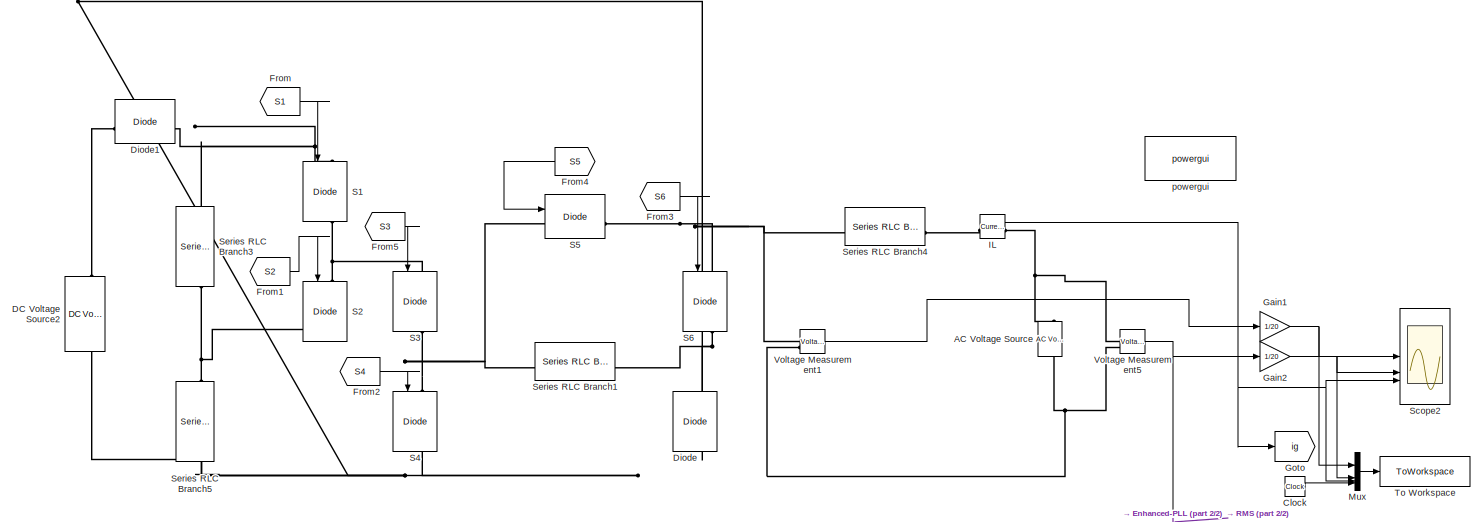
[diagram: root canvas - part 1/2, full width, top band]
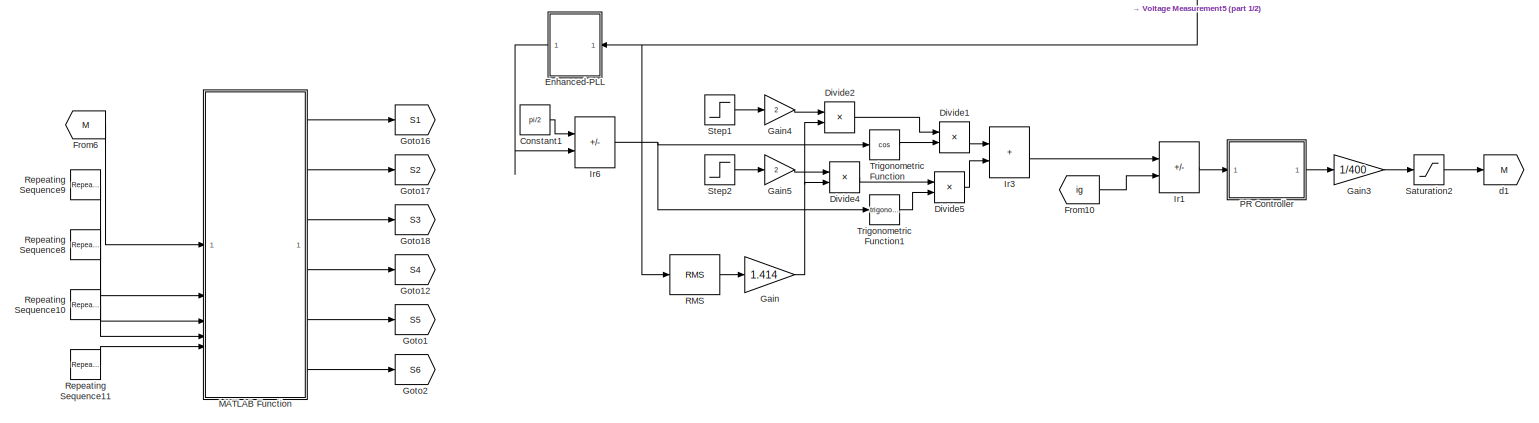
[diagram: root canvas - part 2/2, full width, bottom band]
MODEL slx_94257b153b8b
KIND model
CONFIG AbsTol = auto
CONFIG EnableMultiTasking = off
CONFIG FixedStep = auto
CONFIG MaxStep = auto
CONFIG MinStep = auto
CONFIG RelTol = 1e-3
CONFIG SampleTimeConstraint = Unconstrained
CONFIG SolverName = VariableStepAuto
CONFIG StartTime = 0.0
CONFIG StopTime = 0.6
BLOCK [Reference] AC Voltage Source  REF=spsACVoltageSourceLib/AC Voltage Source
  LibrarySourceBlock = sps_lib/Sources/AC Voltage Source
  NameLocation = right
  SourceBlock = spsACVoltageSourceLib/AC Voltage Source
  SourceType = AC Voltage Source
BLOCK [Clock] Clock
BLOCK [Constant] Constant1
  Value = pi/2
BLOCK [Reference] DC Voltage Source2  REF=spsDCVoltageSourceLib/DC Voltage Source
  LibrarySourceBlock = sps_lib/Sources/DC Voltage Source
  NameLocation = right
  SourceBlock = spsDCVoltageSourceLib/DC Voltage Source
  SourceType = DC Voltage Source
BLOCK [Reference] Diode  REF=spsDiodeLib/Diode
  LibrarySourceBlock = sps_lib/Power Electronics/Diode
  NameLocation = left
  SourceBlock = spsDiodeLib/Diode
  SourceType = Diode
BLOCK [Reference] Diode1  REF=spsDiodeLib/Diode
  LibrarySourceBlock = sps_lib/Power Electronics/Diode
  SourceBlock = spsDiodeLib/Diode
  SourceType = Diode
BLOCK [Product] Divide1
  Inputs = **
BLOCK [Product] Divide2
  Inputs = */
BLOCK [Product] Divide4
  Inputs = */
BLOCK [Product] Divide5
  Inputs = **
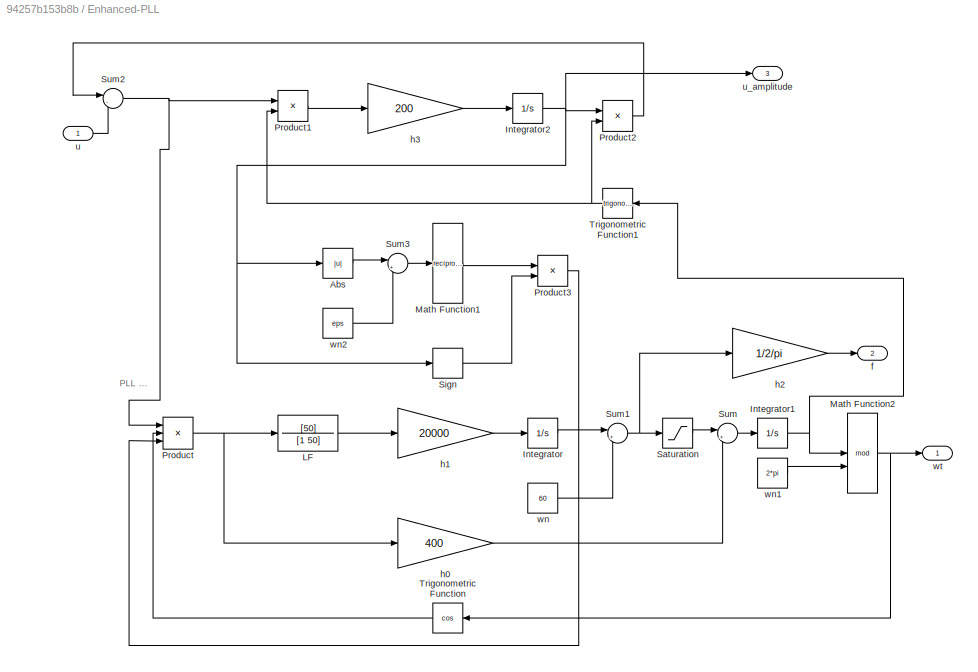
BLOCK [SubSystem] Enhanced-PLL
  NameLocation = top
BLOCK [Abs] Enhanced-PLL/Abs
  SaturateOnIntegerOverflow = off
BLOCK [Integrator] Enhanced-PLL/Integrator
BLOCK [Integrator] Enhanced-PLL/Integrator1
BLOCK [Integrator] Enhanced-PLL/Integrator2
BLOCK [TransferFcn] Enhanced-PLL/LF
  Denominator = [1 50]
  Numerator = [50]
BLOCK [Math] Enhanced-PLL/Math Function1
  Operator = reciprocal
  SignedPower = on
BLOCK [Math] Enhanced-PLL/Math Function2
  Operator = mod
  SignedPower = on
BLOCK [Product] Enhanced-PLL/Product
  Inputs = 3
BLOCK [Product] Enhanced-PLL/Product1
BLOCK [Product] Enhanced-PLL/Product2
BLOCK [Product] Enhanced-PLL/Product3
BLOCK [Saturate] Enhanced-PLL/Saturation
  LowerLimit = 2*pi*30
  UpperLimit = 2*pi*300
BLOCK [Signum] Enhanced-PLL/Sign
BLOCK [Sum] Enhanced-PLL/Sum
  Inputs = |++
BLOCK [Sum] Enhanced-PLL/Sum1
  Inputs = |++
BLOCK [Sum] Enhanced-PLL/Sum2
  Inputs = |-+
BLOCK [Sum] Enhanced-PLL/Sum3
  Inputs = |++
BLOCK [Trigonometry] Enhanced-PLL/Trigonometric Function
  NameLocation = top
  Operator = cos
BLOCK [Trigonometry] Enhanced-PLL/Trigonometric Function1
  NameLocation = top
BLOCK [Outport] Enhanced-PLL/f
  Port = 2
BLOCK [Gain] Enhanced-PLL/h0
  Gain = 400
BLOCK [Gain] Enhanced-PLL/h1
  Gain = 20000
BLOCK [Gain] Enhanced-PLL/h2
  Gain = 1/2/pi
BLOCK [Gain] Enhanced-PLL/h3
  Gain = 200
BLOCK [Inport] Enhanced-PLL/u
BLOCK [Outport] Enhanced-PLL/u_amplitude
  Port = 3
BLOCK [Constant] Enhanced-PLL/wn
  Value = 60
BLOCK [Constant] Enhanced-PLL/wn1
  Value = 2*pi
BLOCK [Constant] Enhanced-PLL/wn2
  Value = eps
BLOCK [Outport] Enhanced-PLL/wt
BLOCK [From] From
  GotoTag = S1
BLOCK [From] From1
  GotoTag = S2
BLOCK [From] From10
  GotoTag = ig
BLOCK [From] From2
  GotoTag = S4
BLOCK [From] From3
  GotoTag = S6
BLOCK [From] From4
  GotoTag = S5
  NameLocation = top
BLOCK [From] From5
  GotoTag = S3
BLOCK [From] From6
  GotoTag = M
  TagVisibility = global
BLOCK [Gain] Gain
  Gain = 1.414
BLOCK [Gain] Gain1
  Gain = 1/20
BLOCK [Gain] Gain2
  Gain = 1/20
BLOCK [Gain] Gain3
  Gain = 1/400
BLOCK [Gain] Gain4
  Gain = 2
BLOCK [Gain] Gain5
  Gain = 2
BLOCK [Goto] Goto
  GotoTag = ig
BLOCK [Goto] Goto1
  GotoTag = S5
BLOCK [Goto] Goto12
  GotoTag = S4
BLOCK [Goto] Goto16
  GotoTag = S1
BLOCK [Goto] Goto17
  GotoTag = S2
BLOCK [Goto] Goto18
  GotoTag = S3
BLOCK [Goto] Goto2
  GotoTag = S6
BLOCK [Reference] IL  REF=spsCurrentMeasurementLib/Current Measurement
  LibrarySourceBlock = sps_lib/Sensors and Measurements/Current Measurement
  SourceBlock = spsCurrentMeasurementLib/Current Measurement
  SourceType = Current Measurement
  UserDataPersistent = on
BLOCK [Sum] Ir1
  IconShape = rectangular
  Inputs = +-
BLOCK [Sum] Ir3
  IconShape = rectangular
BLOCK [Sum] Ir6
  IconShape = rectangular
  Inputs = -+
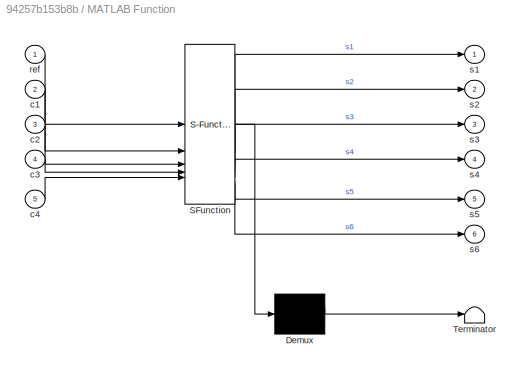
BLOCK [SubSystem] MATLAB Function
  ErrorFcn = Stateflow.Translate.translate
  PermitHierarchicalResolution = ExplicitOnly
  SFBlockType = MATLAB Function
  TreatAsAtomicUnit = on
BLOCK [Demux] MATLAB Function/ Demux 
  Outputs = 1
BLOCK [S-Function] MATLAB Function/ SFunction 
  EnableBusSupport = on
  FunctionName = sf_sfun
  PortCounts = [5 7]
  SFcnIsStateOwnerBlock = off
  SFunctionDeploymentMode = off
  Tag = Stateflow S-Function 2
BLOCK [Terminator] MATLAB Function/ Terminator 
BLOCK [Inport] MATLAB Function/c1
  Port = 2
BLOCK [Inport] MATLAB Function/c2
  Port = 3
BLOCK [Inport] MATLAB Function/c3
  Port = 4
BLOCK [Inport] MATLAB Function/c4
  Port = 5
BLOCK [Inport] MATLAB Function/ref
BLOCK [Outport] MATLAB Function/s1
BLOCK [Outport] MATLAB Function/s2
  Port = 2
BLOCK [Outport] MATLAB Function/s3
  Port = 3
BLOCK [Outport] MATLAB Function/s4
  Port = 4
BLOCK [Outport] MATLAB Function/s5
  Port = 5
BLOCK [Outport] MATLAB Function/s6
  Port = 6
BLOCK [Mux] Mux
  DisplayOption = bar
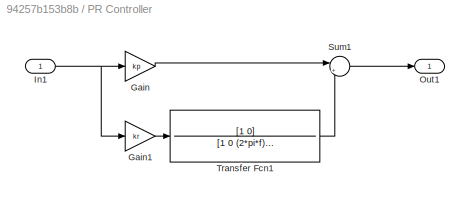
BLOCK [SubSystem] PR Controller
BLOCK [Gain] PR Controller/Gain
  Gain = kp
BLOCK [Gain] PR Controller/Gain1
  Gain = kr
BLOCK [Inport] PR Controller/In1
BLOCK [Outport] PR Controller/Out1
BLOCK [Sum] PR Controller/Sum1
  Inputs = |++
BLOCK [TransferFcn] PR Controller/Transfer Fcn1
  Denominator = [1 0 (2*pi*f)^2]
  Numerator = [1 0]
BLOCK [Reference] RMS  REF=spsRMSLib/RMS
  LibrarySourceBlock = sps_lib/Sensors and Measurements/RMS
  SourceBlock = spsRMSLib/RMS
  SourceType = RMS
BLOCK [Reference] Repeating Sequence10  REF=simulink/Sources/Repeating
Sequence
  SourceBlock = simulink/Sources/Repeating\nSequence
  SourceType = Repeating table
BLOCK [Reference] Repeating Sequence11  REF=simulink/Sources/Repeating
Sequence
  SourceBlock = simulink/Sources/Repeating\nSequence
  SourceType = Repeating table
BLOCK [Reference] Repeating Sequence8  REF=simulink/Sources/Repeating
Sequence
  SourceBlock = simulink/Sources/Repeating\nSequence
  SourceType = Repeating table
BLOCK [Reference] Repeating Sequence9  REF=simulink/Sources/Repeating
Sequence
  SourceBlock = simulink/Sources/Repeating\nSequence
  SourceType = Repeating table
BLOCK [Reference] S1  REF=spsIGBTDiodeLib/IGBT//Diode
  LibrarySourceBlock = sps_lib/Power Electronics/IGBT//Diode
  NameLocation = left
  SourceBlock = spsIGBTDiodeLib/IGBT//Diode
  SourceType = IGBT/Diode
BLOCK [Reference] S2  REF=spsIGBTDiodeLib/IGBT//Diode
  LibrarySourceBlock = sps_lib/Power Electronics/IGBT//Diode
  NameLocation = left
  SourceBlock = spsIGBTDiodeLib/IGBT//Diode
  SourceType = IGBT/Diode
BLOCK [Reference] S3  REF=spsIGBTDiodeLib/IGBT//Diode
  LibrarySourceBlock = sps_lib/Power Electronics/IGBT//Diode
  NameLocation = left
  SourceBlock = spsIGBTDiodeLib/IGBT//Diode
  SourceType = IGBT/Diode
BLOCK [Reference] S4  REF=spsIGBTDiodeLib/IGBT//Diode
  LibrarySourceBlock = sps_lib/Power Electronics/IGBT//Diode
  NameLocation = left
  SourceBlock = spsIGBTDiodeLib/IGBT//Diode
  SourceType = IGBT/Diode
BLOCK [Reference] S5  REF=spsIGBTDiodeLib/IGBT//Diode
  LibrarySourceBlock = sps_lib/Power Electronics/IGBT//Diode
  SourceBlock = spsIGBTDiodeLib/IGBT//Diode
  SourceType = IGBT/Diode
BLOCK [Reference] S6  REF=spsIGBTDiodeLib/IGBT//Diode
  LibrarySourceBlock = sps_lib/Power Electronics/IGBT//Diode
  NameLocation = left
  SourceBlock = spsIGBTDiodeLib/IGBT//Diode
  SourceType = IGBT/Diode
BLOCK [Saturate] Saturation2
  LinearizeAsGain = off
  LowerLimit = -2
  UpperLimit = 2
BLOCK [Scope] Scope2
  Floating = off
  NumInputPorts = 3
  ScopeSpecificationString = Simulink.scopes.TimeScopeBlockCfg('CurrentConfiguration', extmgr.ConfigurationSet(extmgr.Configuration('Core','General UI',true),extmgr.Configuration('Core','Source UI',true),extmgr.Configuration('Sources','WiredSimulink',true,'DataLogging',true,'DataLoggingVariableName','ScopeData2','DataLoggingSaveFormat','StructureWithTime','DataLoggingDecimation','1','DataLoggingDecimateData',true),extmgr.Conf...<+3342ch>
BLOCK [Reference] Series RLC Branch1  REF=spsSeriesRLCBranchLib/Series RLC Branch
  LibrarySourceBlock = sps_lib/Passives/Series RLC Branch
  SourceBlock = spsSeriesRLCBranchLib/Series RLC Branch
  SourceType = Series RLC Branch
BLOCK [Reference] Series RLC Branch3  REF=spsSeriesRLCBranchLib/Series RLC Branch
  LibrarySourceBlock = sps_lib/Passives/Series RLC Branch
  NameLocation = left
  SourceBlock = spsSeriesRLCBranchLib/Series RLC Branch
  SourceType = Series RLC Branch
BLOCK [Reference] Series RLC Branch4  REF=spsSeriesRLCBranchLib/Series RLC Branch
  LibrarySourceBlock = sps_lib/Passives/Series RLC Branch
  SourceBlock = spsSeriesRLCBranchLib/Series RLC Branch
  SourceType = Series RLC Branch
BLOCK [Reference] Series RLC Branch5  REF=spsSeriesRLCBranchLib/Series RLC Branch
  LibrarySourceBlock = sps_lib/Passives/Series RLC Branch
  NameLocation = left
  SourceBlock = spsSeriesRLCBranchLib/Series RLC Branch
  SourceType = Series RLC Branch
BLOCK [Step] Step1
  After = 0
  Before = 1000
  SampleTime = 0
  Time = 0.3
BLOCK [Step] Step2
  After = 1200
  SampleTime = 0
  Time = 0.3
BLOCK [ToWorkspace] To Workspace
  FixptAsFi = on
  MaxDataPoints = inf
  SampleTime = -1
  Save2DSignal = 2-D array (concatenate along first dimension)
  VariableName = simout
BLOCK [Trigonometry] Trigonometric Function
  Operator = cos
BLOCK [Trigonometry] Trigonometric Function1
BLOCK [Reference] Voltage Measurement1  REF=spsVoltageMeasurementLib/Voltage Measurement
  LibrarySourceBlock = sps_lib/Sensors and Measurements/Voltage Measurement
  SourceBlock = spsVoltageMeasurementLib/Voltage Measurement
  SourceType = Voltage Measurement
  UserDataPersistent = on
BLOCK [Reference] Voltage Measurement5  REF=spsVoltageMeasurementLib/Voltage Measurement
  LibrarySourceBlock = sps_lib/Sensors and Measurements/Voltage Measurement
  SourceBlock = spsVoltageMeasurementLib/Voltage Measurement
  SourceType = Voltage Measurement
  UserDataPersistent = on
BLOCK [Goto] d1
  GotoTag = M
  TagVisibility = global
BLOCK [Reference] powergui  REF=sps_lib/powergui
  LibrarySourceBlock = sps_lib/powergui
  Priority = 1
  SourceBlock = sps_lib/powergui
  SourceType = PSB option menu block
ANNOTATION Enhanced-PLL: PLL
LINE Clock:1 -> Mux:4
LINE Constant1:1 -> Ir6:1
LINE Divide1:1 -> Ir3:1
LINE Divide2:1 -> Divide1:1
LINE Divide4:1 -> Divide5:1
LINE Divide5:1 -> Ir3:2
LINE Enhanced-PLL/Abs:1 -> Enhanced-PLL/Sum3:1
NET Enhanced-PLL/Integrator1:1 -> Enhanced-PLL/Math Function2:1, Enhanced-PLL/Trigonometric Function1:1
NET Enhanced-PLL/Integrator2:1 -> Enhanced-PLL/Abs:1, Enhanced-PLL/Product2:1, Enhanced-PLL/Sign:1, Enhanced-PLL/u_amplitude:1
LINE Enhanced-PLL/Integrator:1 -> Enhanced-PLL/Sum1:1
LINE Enhanced-PLL/LF:1 -> Enhanced-PLL/h1:1
LINE Enhanced-PLL/Math Function1:1 -> Enhanced-PLL/Product3:1
NET Enhanced-PLL/Math Function2:1 -> Enhanced-PLL/Trigonometric Function:1, Enhanced-PLL/wt:1
LINE Enhanced-PLL/Product1:1 -> Enhanced-PLL/h3:1
LINE Enhanced-PLL/Product2:1 -> Enhanced-PLL/Sum2:1
LINE Enhanced-PLL/Product3:1 -> Enhanced-PLL/Product:3
NET Enhanced-PLL/Product:1 -> Enhanced-PLL/LF:1, Enhanced-PLL/h0:1
LINE Enhanced-PLL/Saturation:1 -> Enhanced-PLL/Sum:1
LINE Enhanced-PLL/Sign:1 -> Enhanced-PLL/Product3:2
NET Enhanced-PLL/Sum1:1 -> Enhanced-PLL/Saturation:1, Enhanced-PLL/h2:1
NET Enhanced-PLL/Sum2:1 -> Enhanced-PLL/Product1:1, Enhanced-PLL/Product:1
LINE Enhanced-PLL/Sum3:1 -> Enhanced-PLL/Math Function1:1
LINE Enhanced-PLL/Sum:1 -> Enhanced-PLL/Integrator1:1
NET Enhanced-PLL/Trigonometric Function1:1 -> Enhanced-PLL/Product1:2, Enhanced-PLL/Product2:2
LINE Enhanced-PLL/Trigonometric Function:1 -> Enhanced-PLL/Product:2
LINE Enhanced-PLL/h0:1 -> Enhanced-PLL/Sum:2
LINE Enhanced-PLL/h1:1 -> Enhanced-PLL/Integrator:1
LINE Enhanced-PLL/h2:1 -> Enhanced-PLL/f:1
LINE Enhanced-PLL/h3:1 -> Enhanced-PLL/Integrator2:1
LINE Enhanced-PLL/u:1 -> Enhanced-PLL/Sum2:2
LINE Enhanced-PLL/wn1:1 -> Enhanced-PLL/Math Function2:2
LINE Enhanced-PLL/wn2:1 -> Enhanced-PLL/Sum3:2
LINE Enhanced-PLL/wn:1 -> Enhanced-PLL/Sum1:2
LINE Enhanced-PLL:1 -> Ir6:2
LINE From10:1 -> Ir1:2
LINE From1:1 -> S2:1
LINE From2:1 -> S4:1
LINE From3:1 -> S6:1
LINE From4:1 -> S5:1
LINE From5:1 -> S3:1
LINE From6:1 -> MATLAB Function:1
LINE From:1 -> S1:1
NET Gain1:1 -> Mux:1, Scope2:1
NET Gain2:1 -> Mux:2, Scope2:2
LINE Gain3:1 -> Saturation2:1
LINE Gain4:1 -> Divide2:1
LINE Gain5:1 -> Divide4:1
NET Gain:1 -> Divide2:2, Divide4:2
NET IL:1 -> Goto:1, Mux:3, Scope2:3
LINE Ir1:1 -> PR Controller:1
LINE Ir3:1 -> Ir1:1
NET Ir6:1 -> Trigonometric Function1:1, Trigonometric Function:1
LINE MATLAB Function:1 -> Goto16:1
LINE MATLAB Function:2 -> Goto17:1
LINE MATLAB Function:3 -> Goto18:1
LINE MATLAB Function:4 -> Goto12:1
LINE MATLAB Function:5 -> Goto1:1
LINE MATLAB Function:6 -> Goto2:1
LINE Mux:1 -> To Workspace:1
LINE PR Controller/Gain1:1 -> PR Controller/Transfer Fcn1:1
LINE PR Controller/Gain:1 -> PR Controller/Sum1:1
NET PR Controller/In1:1 -> PR Controller/Gain1:1, PR Controller/Gain:1
LINE PR Controller/Sum1:1 -> PR Controller/Out1:1
LINE PR Controller/Transfer Fcn1:1 -> PR Controller/Sum1:2
LINE PR Controller:1 -> Gain3:1
LINE RMS:1 -> Gain:1
LINE Repeating Sequence10:1 -> MATLAB Function:4
LINE Repeating Sequence11:1 -> MATLAB Function:5
LINE Repeating Sequence8:1 -> MATLAB Function:3
LINE Repeating Sequence9:1 -> MATLAB Function:2
LINE Saturation2:1 -> d1:1
LINE Step1:1 -> Gain4:1
LINE Step2:1 -> Gain5:1
LINE Trigonometric Function1:1 -> Divide5:2
LINE Trigonometric Function:1 -> Divide1:2
LINE Voltage Measurement1:1 -> Gain1:1
NET Voltage Measurement5:1 -> Enhanced-PLL:1, Gain2:1, RMS:1
PNET net1: AC Voltage Source:LConn1 -- DC Voltage Source2:LConn1 -- Diode:RConn1 -- S4:RConn1 -- Series RLC Branch5:RConn1 -- Voltage Measurement1:LConn2 -- Voltage Measurement5:LConn2
PNET net2: AC Voltage Source:RConn1 -- IL:RConn1 -- Voltage Measurement5:LConn1
PLINE DC Voltage Source2:RConn1 -- Diode1:LConn1
PNET net3: Diode1:RConn1 -- S1:LConn1 -- Series RLC Branch3:LConn1
PNET net4: Diode:LConn1 -- S6:RConn1 -- Series RLC Branch1:RConn1
PLINE IL:LConn1 -- Series RLC Branch4:RConn1
PNET net5: S1:RConn1 -- S2:LConn1 -- S3:LConn1
PNET net6: S2:RConn1 -- Series RLC Branch3:RConn1 -- Series RLC Branch5:LConn1
PNET net7: S3:RConn1 -- S4:LConn1 -- S5:LConn1 -- Series RLC Branch1:LConn1
PNET net8: S5:RConn1 -- S6:LConn1 -- Series RLC Branch4:LConn1 -- Voltage Measurement1:LConn1
note: NET lines group one-source signal fan-out (src -> all destinations, sorted); 1:1 wires keep LINE; PNET lines group multi-terminal physical nets as a canonical sorted terminal list (undirected conserving connections); 2-terminal nets keep the pairwise PLINE form
CHART MATLAB Function states=1 transitions=1
  STATE_LABEL 'eML_blk_kernel()'
  STATE_LABEL 'SCRIPT:\nfunction [s1,s2,s3,s4,s5,s6] = fcn(ref,c1,c2,c3,c4)\n\nif (ref>c1) % level 1\n    s1=1;s2=0;s3=1;s4=0;s5=1;s6=0;\nelseif (ref>c2 && ref <c1) % level 2\n    s1=0;s2=1;s3=1;s4=0;s5=1;s6=0;\nelseif (ref>c3 && ref <c2) % level 3\n    s1=0;s2=0;s3=0;s4=1;s5=1;s6=0;\nelseif (ref>c4 && ref <c3) % level 4\n    s1=0;s2=1;s3=1;s4=0;s5=0;s6=1;\nelse % level 5\n    s1=0;s2=0;s3=0;s4=1;s5=0;s6=1;\n\nend\nend\n'
CHART  states=0 transitions=0
